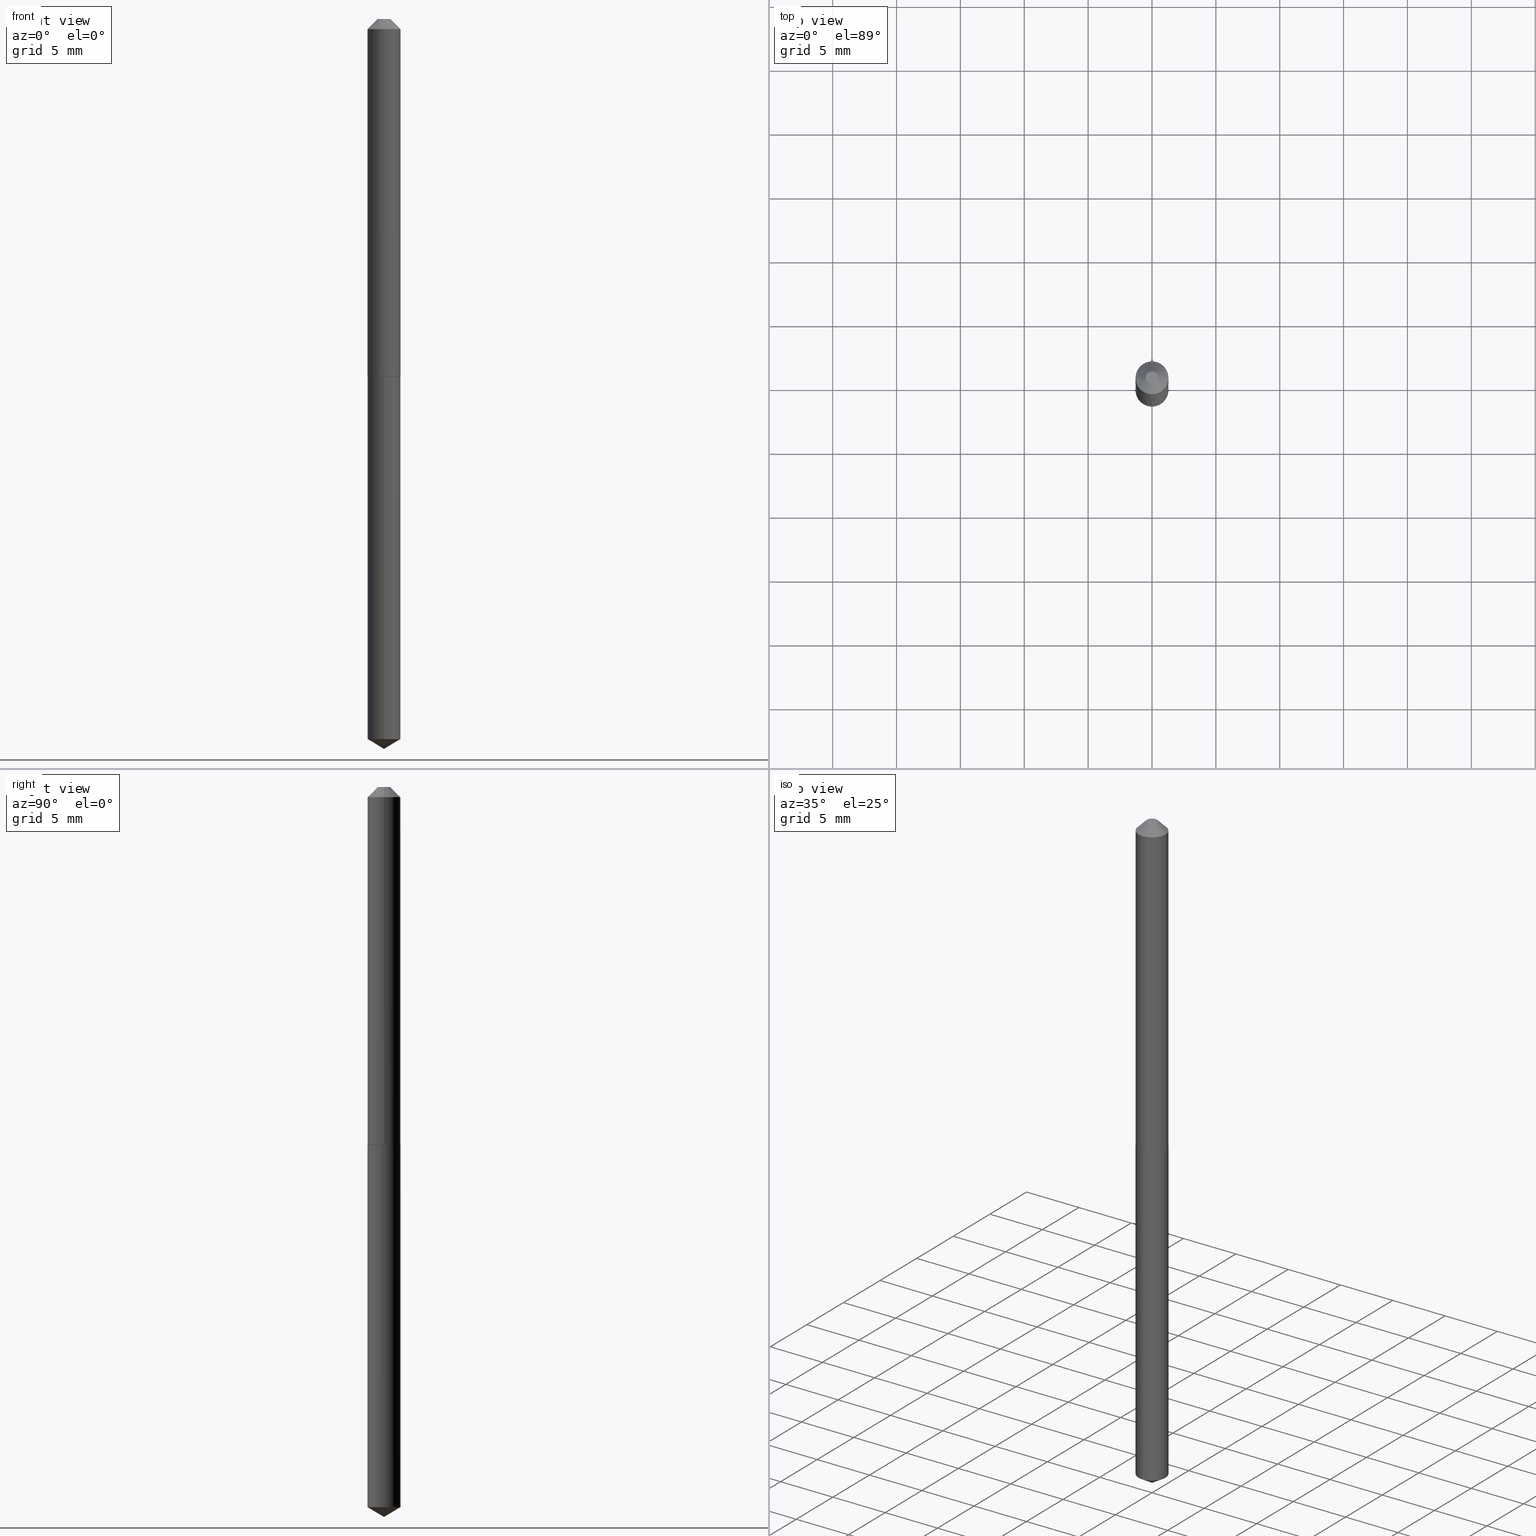
[diagram: canonical four-view strip — front | top / right | iso, engineering-drawing reading convention]
A machine part, canonical four-view strip (front | top / right | iso — engineering-drawing reading convention). The complete STEP part file that produces these views, byte-faithful:
ISO-10303-21;
HEADER;
FILE_DESCRIPTION (( 'STEP AP203' ),
    '1' );
FILE_NAME ('51038.STEP',
    '2024-04-22T18:16:48',
    ( '' ),
    ( '' ),
    'SwSTEP 2.0',
    'SolidWorks 2023',
    '' );
FILE_SCHEMA (( 'CONFIG_CONTROL_DESIGN' ));
ENDSEC;

DATA;
#1 = DIRECTION ( 'NONE',  ( 1.000000000000000000, -6.982962677686267499E-15, 4.876158468089368575E-29 ) ) ;
#2 = ORIENTED_EDGE ( 'NONE', *, *, #294, .T. ) ;
#3 = APPLICATION_CONTEXT ( 'configuration controlled 3d designs of mechanical parts and assemblies' ) ;
#4 = DIRECTION ( 'NONE',  ( -2.445468806185136597E-29, 3.491481338843145583E-15, 1.000000000000000000 ) ) ;
#5 = DIRECTION ( 'NONE',  ( -1.000000000000000000, 6.982962677686265133E-15, 0.000000000000000000 ) ) ;
#6 = EDGE_CURVE ( 'NONE', #131, #77, #123, .T. ) ;
#7 = AXIS2_PLACEMENT_3D ( 'NONE', #17, #244, #126 ) ;
#8 = CARTESIAN_POINT ( 'NONE',  ( 2.693683890012927652E-29, -3.845866694735724612E-15, -1.101499999999999924 ) ) ;
#9 = EDGE_LOOP ( 'NONE', ( #377, #41, #301, #298 ) ) ;
#10 = EDGE_LOOP ( 'NONE', ( #128, #28, #274, #70 ) ) ;
#11 = CARTESIAN_POINT ( 'NONE',  ( -0.05075000000000001732, 2.452765640537290907E-16, -0.03125000000000021511 ) ) ;
#12 = PERSON_AND_ORGANIZATION_ROLE ( 'creator' ) ;
#13 = CONICAL_SURFACE ( 'NONE', #110, 65.52281426576827528, 1.029744258676653423 ) ;
#14 = VECTOR ( 'NONE', #243, 39.37007874015748143 ) ;
#15 = ORIENTED_EDGE ( 'NONE', *, *, #335, .F. ) ;
#16 = APPROVAL_DATE_TIME ( #199, #161 ) ;
#17 = CARTESIAN_POINT ( 'NONE',  ( 2.693683890012927652E-29, -3.845866694735724612E-15, -1.101499999999999924 ) ) ;
#18 = DATE_AND_TIME ( #287, #312 ) ;
#19 = DIRECTION ( 'NONE',  ( 1.000000000000000000, -6.982962677686265922E-15, 4.876176775795935793E-29 ) ) ;
#20 = ADVANCED_FACE ( 'NONE', ( #341 ), #344, .F. ) ;
#21 = APPROVAL_PERSON_ORGANIZATION ( #340, #42, #379 ) ;
#22 = CARTESIAN_POINT ( 'NONE',  ( 0.05025000000000016953, -4.196760569289461029E-15, -1.101499999999999924 ) ) ;
#23 = MECHANICAL_CONTEXT ( 'NONE', #321, 'mechanical' ) ;
#24 = PRODUCT_DEFINITION_SHAPE ( 'NONE', 'NONE',  #175 ) ;
#25 = DIRECTION ( 'NONE',  ( 0.7071067811865052732, -2.468850131081814115E-15, 0.7071067811865897612 ) ) ;
#26 = ADVANCED_FACE ( 'NONE', ( #247 ), #219, .F. ) ;
#27 = DIRECTION ( 'NONE',  ( -6.982962677686265133E-15, -1.000000000000000000, 3.468864327941602497E-15 ) ) ;
#28 = ORIENTED_EDGE ( 'NONE', *, *, #235, .T. ) ;
#29 = DIRECTION ( 'NONE',  ( -2.445468806185136597E-29, 3.491481338843145583E-15, 1.000000000000000000 ) ) ;
#30 = ORIENTED_EDGE ( 'NONE', *, *, #183, .F. ) ;
#31 = LOCAL_TIME ( 14, 16, 48.00000000000000000, #74 ) ;
#32 = DIRECTION ( 'NONE',  ( -2.445399240766827348E-29, 3.491580960481582281E-15, 1.000000000000000000 ) ) ;
#33 = VERTEX_POINT ( 'NONE', #99 ) ;
#34 = DIRECTION ( 'NONE',  ( -2.445399240766827348E-29, 3.491580960481582281E-15, 1.000000000000000000 ) ) ;
#35 = EDGE_CURVE ( 'NONE', #153, #33, #279, .T. ) ;
#36 = DIRECTION ( 'NONE',  ( 1.000000000000000000, -6.982962677686270655E-15, 0.000000000000000000 ) ) ;
#37 = VERTEX_POINT ( 'NONE', #193 ) ;
#38 = AXIS2_PLACEMENT_3D ( 'NONE', #208, #263, #382 ) ;
#39 = SECURITY_CLASSIFICATION ( '', '', #134 ) ;
#40 = DIRECTION ( 'NONE',  ( -2.445399240766827348E-29, 3.491580960481582281E-15, 1.000000000000000000 ) ) ;
#41 = ORIENTED_EDGE ( 'NONE', *, *, #69, .T. ) ;
#42 = APPROVAL ( #348, 'UNSPECIFIED' ) ;
#43 = ORIENTED_EDGE ( 'NONE', *, *, #311, .F. ) ;
#44 =( NAMED_UNIT ( * ) SI_UNIT ( $, .STERADIAN. ) SOLID_ANGLE_UNIT ( ) );
#45 = CYLINDRICAL_SURFACE ( 'NONE', #233, 0.05075000000000008671 ) ;
#46 = APPROVAL_STATUS ( 'not_yet_approved' ) ;
#47 = AXIS2_PLACEMENT_3D ( 'NONE', #120, #178, #303 ) ;
#48 = ORIENTED_EDGE ( 'NONE', *, *, #271, .T. ) ;
#49 = DATE_AND_TIME ( #160, #329 ) ;
#50 = CARTESIAN_POINT ( 'NONE',  ( 0.000000000000000000, 0.000000000000000000, 0.000000000000000000 ) ) ;
#51 = APPROVAL_DATE_TIME ( #49, #42 ) ;
#52 = CARTESIAN_POINT ( 'NONE',  ( 0.05075000000000014222, -4.198506309958881744E-15, -1.100999999999999979 ) ) ;
#53 = CARTESIAN_POINT ( 'NONE',  ( 0.000000000000000000, 0.000000000000000000, 0.000000000000000000 ) ) ;
#54 = CONICAL_SURFACE ( 'NONE', #38, 65.52281426576827528, 1.029744258676653423 ) ;
#55 = CC_DESIGN_PERSON_AND_ORGANIZATION_ASSIGNMENT ( #130, #202, ( #71 ) ) ;
#56 = DIRECTION ( 'NONE',  ( -2.445468806185136597E-29, 3.491481338843145583E-15, 1.000000000000000000 ) ) ;
#57 = AXIS2_PLACEMENT_3D ( 'NONE', #334, #302, #95 ) ;
#58 = APPROVAL_PERSON_ORGANIZATION ( #194, #161, #310 ) ;
#59 = CARTESIAN_POINT ( 'NONE',  ( -0.05075000000000014222, -3.483520515668050958E-15, -1.100999999999999979 ) ) ;
#60 = DIRECTION ( 'NONE',  ( -2.445468806185136597E-29, 3.491481338843145583E-15, 1.000000000000000000 ) ) ;
#61 = EDGE_LOOP ( 'NONE', ( #100, #113, #146, #286 ) ) ;
#62 = DIRECTION ( 'NONE',  ( 6.090539988449775280E-15, 0.8571673007021136659, 0.5150380749100520461 ) ) ;
#63 = CIRCLE ( 'NONE', #324, 0.05075000000000001732 ) ;
#64 = CIRCLE ( 'NONE', #292, 0.05025000000000016953 ) ;
#65 = ADVANCED_FACE ( 'NONE', ( #309 ), #45, .T. ) ;
#66 = DIRECTION ( 'NONE',  ( -0.7071067811865052732, 7.493145998870201121E-15, 0.7071067811865897612 ) ) ;
#67 = CARTESIAN_POINT ( 'NONE',  ( -0.05075000000000014222, -3.483520515668050958E-15, -1.100999999999999979 ) ) ;
#68 = DIRECTION ( 'NONE',  ( 1.000000000000000000, -6.982962677686265133E-15, 0.000000000000000000 ) ) ;
#69 = EDGE_CURVE ( 'NONE', #37, #237, #255, .T. ) ;
#70 = ORIENTED_EDGE ( 'NONE', *, *, #170, .F. ) ;
#71 = PRODUCT_DEFINITION_FORMATION_WITH_SPECIFIED_SOURCE ( 'ANY', '', #384, .NOT_KNOWN. ) ;
#72 = FACE_OUTER_BOUND ( 'NONE', #9, .T. ) ;
#73 = VERTEX_POINT ( 'NONE', #59 ) ;
#74 = COORDINATED_UNIVERSAL_TIME_OFFSET ( 5, 0, .BEHIND. ) ;
#75 = DIRECTION ( 'NONE',  ( -0.7071067811865452413, 2.468850131082233000E-15, -0.7071067811865497932 ) ) ;
#76 = DATE_AND_TIME ( #228, #31 ) ;
#77 = VERTEX_POINT ( 'NONE', #314 ) ;
#78 = CIRCLE ( 'NONE', #338, 0.05075000000000001732 ) ;
#79 = CALENDAR_DATE ( 2024, 22, 4 ) ;
#80 = EDGE_CURVE ( 'NONE', #33, #77, #78, .T. ) ;
#81 = ORIENTED_EDGE ( 'NONE', *, *, #323, .T. ) ;
#82 = APPROVAL_DATE_TIME ( #76, #260 ) ;
#83 = CC_DESIGN_PERSON_AND_ORGANIZATION_ASSIGNMENT ( #101, #318, ( #39 ) ) ;
#84 = DIRECTION ( 'NONE',  ( -2.445468806185136877E-29, 3.491481338843145188E-15, 1.000000000000000000 ) ) ;
#85 = AXIS2_PLACEMENT_3D ( 'NONE', #206, #108, #93 ) ;
#86 = CONICAL_SURFACE ( 'NONE', #90, 0.05075000000000014222, 0.7853981633973885490 ) ;
#87 = CARTESIAN_POINT ( 'NONE',  ( -0.01950000000000000691, 1.907221681343056497E-16, -1.530808498945601662E-19 ) ) ;
#88 = CARTESIAN_POINT ( 'NONE',  ( -9.077333574207768801E-28, 1.296078699139457587E-13, 37.12007874015748143 ) ) ;
#89 = CIRCLE ( 'NONE', #171, 0.05075000000000000344 ) ;
#90 = AXIS2_PLACEMENT_3D ( 'NONE', #122, #4, #98 ) ;
#91 = VERTEX_POINT ( 'NONE', #173 ) ;
#92 = DIRECTION ( 'NONE',  ( 1.000000000000000000, -6.982962677686265922E-15, 4.876176775795935793E-29 ) ) ;
#93 = DIRECTION ( 'NONE',  ( 1.000000000000000000, -6.982962677686270655E-15, 0.000000000000000000 ) ) ;
#94 = ORIENTED_EDGE ( 'NONE', *, *, #210, .F. ) ;
#95 = DIRECTION ( 'NONE',  ( -1.000000000000000000, 6.982962677686265133E-15, 0.000000000000000000 ) ) ;
#96 = CARTESIAN_POINT ( 'NONE',  ( 1.871772216193307361E-48, -2.672394653685577730E-34, -7.654042494670869578E-20 ) ) ;
#97 = ORIENTED_EDGE ( 'NONE', *, *, #366, .F. ) ;
#98 = DIRECTION ( 'NONE',  ( 1.000000000000000000, -6.982962677686270655E-15, 0.000000000000000000 ) ) ;
#99 = CARTESIAN_POINT ( 'NONE',  ( -0.05075000000000001732, -1.616014434554323559E-15, -0.03125000000000021511 ) ) ;
#100 = ORIENTED_EDGE ( 'NONE', *, *, #69, .F. ) ;
#101 = PERSON_AND_ORGANIZATION ( #169, #111 ) ;
#102 = ORIENTED_EDGE ( 'NONE', *, *, #383, .F. ) ;
#103 = EDGE_CURVE ( 'NONE', #196, #131, #141, .T. ) ;
#104 = ORIENTED_EDGE ( 'NONE', *, *, #275, .F. ) ;
#105 = UNCERTAINTY_MEASURE_WITH_UNIT (LENGTH_MEASURE( 1.000000000000000082E-05 ), #119, 'distance_accuracy_value', 'NONE');
#106 = AXIS2_PLACEMENT_3D ( 'NONE', #336, #157, #186 ) ;
#107 = DATE_AND_TIME ( #315, #390 ) ;
#108 = DIRECTION ( 'NONE',  ( -2.445468806185136597E-29, 3.491481338843145583E-15, 1.000000000000000000 ) ) ;
#109 = CARTESIAN_POINT ( 'NONE',  ( 0.01950000000000000691, -2.955293880911495878E-16, -1.530808498919086903E-19 ) ) ;
#110 = AXIS2_PLACEMENT_3D ( 'NONE', #88, #325, #27 ) ;
#111 = ORGANIZATION ( 'UNSPECIFIED', 'UNSPECIFIED', '' ) ;
#112 = DIRECTION ( 'NONE',  ( -2.445468806185136597E-29, 3.491481338843145583E-15, 1.000000000000000000 ) ) ;
#113 = ORIENTED_EDGE ( 'NONE', *, *, #136, .T. ) ;
#114 = CC_DESIGN_DATE_AND_TIME_ASSIGNMENT ( #18, #343, ( #39 ) ) ;
#115 = CARTESIAN_POINT ( 'NONE',  ( -3.543853558925511236E-16, -0.05075000000000384759, -1.101499999999999924 ) ) ;
#116 = AXIS2_PLACEMENT_3D ( 'NONE', #371, #367, #5 ) ;
#117 = FACE_OUTER_BOUND ( 'NONE', #249, .T. ) ;
#118 = ORIENTED_EDGE ( 'NONE', *, *, #35, .T. ) ;
#119 =( CONVERSION_BASED_UNIT ( 'INCH', #300 ) LENGTH_UNIT ( ) NAMED_UNIT ( #195 ) );
#120 = CARTESIAN_POINT ( 'NONE',  ( 3.743544432386614721E-48, -5.344789307371155460E-34, -1.530808498934173916E-19 ) ) ;
#121 = VECTOR ( 'NONE', #25, 39.37007874015748143 ) ;
#122 = CARTESIAN_POINT ( 'NONE',  ( 2.692461155609835411E-29, -3.844120954066303109E-15, -1.100999999999999979 ) ) ;
#123 = LINE ( 'NONE', #375, #305 ) ;
#124 = ADVANCED_FACE ( 'NONE', ( #359 ), #361, .T. ) ;
#125 = DIRECTION ( 'NONE',  ( -2.445468806185136597E-29, 3.491481338843145583E-15, 1.000000000000000000 ) ) ;
#126 = DIRECTION ( 'NONE',  ( 1.000000000000000000, -6.982962677686265922E-15, 4.876176775795935793E-29 ) ) ;
#127 = LINE ( 'NONE', #147, #187 ) ;
#128 = ORIENTED_EDGE ( 'NONE', *, *, #387, .F. ) ;
#129 = AXIS2_PLACEMENT_3D ( 'NONE', #218, #40, #241 ) ;
#130 = PERSON_AND_ORGANIZATION ( #169, #111 ) ;
#131 = VERTEX_POINT ( 'NONE', #52 ) ;
#132 = SHAPE_DEFINITION_REPRESENTATION ( #24, #190 ) ;
#133 = ORIENTED_EDGE ( 'NONE', *, *, #80, .T. ) ;
#134 = SECURITY_CLASSIFICATION_LEVEL ( 'unclassified' ) ;
#135 = CARTESIAN_POINT ( 'NONE',  ( 3.606004383982777887E-16, 0.05074999999999616623, -1.101500000000000146 ) ) ;
#136 = EDGE_CURVE ( 'NONE', #37, #198, #380, .T. ) ;
#137 = CIRCLE ( 'NONE', #261, 0.05025000000000016953 ) ;
#138 = CC_DESIGN_APPROVAL ( #161, ( #39 ) ) ;
#139 = DIRECTION ( 'NONE',  ( 1.000000000000000000, -6.982962677686265133E-15, 0.000000000000000000 ) ) ;
#140 = AXIS2_PLACEMENT_3D ( 'NONE', #50, #240, #19 ) ;
#141 = LINE ( 'NONE', #288, #121 ) ;
#142 = CARTESIAN_POINT ( 'NONE',  ( 5.427655704878611935E-29, -7.749476287860856663E-15, -2.219506323584351293 ) ) ;
#143 = ORIENTED_EDGE ( 'NONE', *, *, #294, .F. ) ;
#144 = CARTESIAN_POINT ( 'NONE',  ( 3.743544432386614721E-48, -5.344789307371155460E-34, -1.530808498934173916E-19 ) ) ;
#145 = DIRECTION ( 'NONE',  ( -2.445468806185136597E-29, 3.491481338843145583E-15, 1.000000000000000000 ) ) ;
#146 = ORIENTED_EDGE ( 'NONE', *, *, #216, .T. ) ;
#147 = CARTESIAN_POINT ( 'NONE',  ( 0.05075000000000001732, -4.572790652257543188E-16, -0.03125000000000021511 ) ) ;
#148 = MANIFOLD_SOLID_BREP ( 'Body-Move/Copy2[2]', #266 ) ;
#149 = CARTESIAN_POINT ( 'NONE',  ( -3.543853558925511236E-16, -0.05075000000000384759, -1.101499999999999924 ) ) ;
#150 = AXIS2_PLACEMENT_3D ( 'NONE', #297, #29, #355 ) ;
#151 = DIRECTION ( 'NONE',  ( -2.445468806185136877E-29, 3.491481338843145188E-15, 1.000000000000000000 ) ) ;
#152 = LINE ( 'NONE', #67, #234 ) ;
#153 = VERTEX_POINT ( 'NONE', #87 ) ;
#154 = CARTESIAN_POINT ( 'NONE',  ( 2.693683890012927652E-29, -3.845866694735724612E-15, -1.101499999999999924 ) ) ;
#155 = ORIENTED_EDGE ( 'NONE', *, *, #35, .F. ) ;
#156 = APPLICATION_PROTOCOL_DEFINITION ( 'international standard', 'config_control_design', 1994, #3 ) ;
#157 = DIRECTION ( 'NONE',  ( 2.445399240766827068E-29, -3.491580960481582281E-15, -1.000000000000000000 ) ) ;
#158 = CLOSED_SHELL ( 'NONE', ( #317, #200, #254, #354, #26 ) ) ;
#159 = APPROVAL_PERSON_ORGANIZATION ( #259, #260, #351 ) ;
#160 = CALENDAR_DATE ( 2024, 22, 4 ) ;
#161 = APPROVAL ( #345, 'UNSPECIFIED' ) ;
#162 = ORIENTED_EDGE ( 'NONE', *, *, #6, .F. ) ;
#163 = MANIFOLD_SOLID_BREP ( 'Body-Move/Copy2[1]', #158 ) ;
#164 = DIRECTION ( 'NONE',  ( -2.445399240766827348E-29, 3.491580960481582281E-15, 1.000000000000000000 ) ) ;
#165 = PERSON_AND_ORGANIZATION ( #169, #111 ) ;
#166 = DIRECTION ( 'NONE',  ( 1.000000000000000000, -6.982962677686265133E-15, 0.000000000000000000 ) ) ;
#167 = DIRECTION ( 'NONE',  ( 1.000000000000000000, 0.000000000000000000, 0.000000000000000000 ) ) ;
#168 = CC_DESIGN_SECURITY_CLASSIFICATION ( #39, ( #71 ) ) ;
#169 = PERSON ( 'UNSPECIFIED', 'UNSPECIFIED', 'UNSPECIFIED', ('UNSPECIFIED'), ('UNSPECIFIED'), ('UNSPECIFIED') ) ;
#170 = EDGE_CURVE ( 'NONE', #73, #131, #204, .T. ) ;
#171 = AXIS2_PLACEMENT_3D ( 'NONE', #142, #388, #239 ) ;
#172 = DIRECTION ( 'NONE',  ( 1.000000000000000000, -6.982962677686265133E-15, 0.000000000000000000 ) ) ;
#173 = CARTESIAN_POINT ( 'NONE',  ( 5.502148291725361463E-29, -7.856057161083561019E-15, -2.250000000000000000 ) ) ;
#174 = EDGE_LOOP ( 'NONE', ( #307, #339, #223 ) ) ;
#175 = PRODUCT_DEFINITION ( 'UNKNOWN', '', #71, #203 ) ;
#176 = LINE ( 'NONE', #115, #299 ) ;
#177 = EDGE_LOOP ( 'NONE', ( #2, #189, #43, #389 ) ) ;
#178 = DIRECTION ( 'NONE',  ( -2.445468806185136597E-29, 3.491481338843145583E-15, 1.000000000000000000 ) ) ;
#179 = AXIS2_PLACEMENT_3D ( 'NONE', #217, #273, #333 ) ;
#180 = EDGE_LOOP ( 'NONE', ( #15, #97, #118, #133 ) ) ;
#181 = CARTESIAN_POINT ( 'NONE',  ( 2.692461155609835411E-29, -3.844120954066303109E-15, -1.100999999999999979 ) ) ;
#182 =( LENGTH_UNIT ( ) NAMED_UNIT ( * ) SI_UNIT ( $, .METRE. ) );
#183 = EDGE_CURVE ( 'NONE', #73, #33, #230, .T. ) ;
#184 = DIRECTION ( 'NONE',  ( 2.438088387897960049E-29, -3.491481338843145188E-15, -1.000000000000000000 ) ) ;
#185 = PRODUCT_RELATED_PRODUCT_CATEGORY ( 'detail', '', ( #384 ) ) ;
#186 = DIRECTION ( 'NONE',  ( 6.982962677686265922E-15, 1.000000000000000000, -3.491580960481582281E-15 ) ) ;
#187 = VECTOR ( 'NONE', #276, 39.37007874015748143 ) ;
#188 = FACE_OUTER_BOUND ( 'NONE', #177, .T. ) ;
#189 = ORIENTED_EDGE ( 'NONE', *, *, #387, .T. ) ;
#190 = ADVANCED_BREP_SHAPE_REPRESENTATION ( '51038', ( #163, #148, #364 ), #209 ) ;
#191 = CC_DESIGN_PERSON_AND_ORGANIZATION_ASSIGNMENT ( #192, #12, ( #71 ) ) ;
#192 = PERSON_AND_ORGANIZATION ( #169, #111 ) ;
#193 = CARTESIAN_POINT ( 'NONE',  ( 3.606004383983051030E-16, 0.05074999999999225270, -2.219506323584351737 ) ) ;
#194 = PERSON_AND_ORGANIZATION ( #169, #111 ) ;
#195 = DIMENSIONAL_EXPONENTS ( 1.000000000000000000, 0.000000000000000000, 0.000000000000000000, 0.000000000000000000, 0.000000000000000000, 0.000000000000000000, 0.000000000000000000 ) ;
#196 = VERTEX_POINT ( 'NONE', #22 ) ;
#197 = COORDINATED_UNIVERSAL_TIME_OFFSET ( 5, 0, .BEHIND. ) ;
#198 = VERTEX_POINT ( 'NONE', #201 ) ;
#199 = DATE_AND_TIME ( #79, #306 ) ;
#200 = ADVANCED_FACE ( 'NONE', ( #316 ), #54, .T. ) ;
#201 = CARTESIAN_POINT ( 'NONE',  ( -3.543853558925237600E-16, -0.05075000000000774725, -2.219506323584350849 ) ) ;
#202 = PERSON_AND_ORGANIZATION_ROLE ( 'design_supplier' ) ;
#203 = DESIGN_CONTEXT ( 'detailed design', #3, 'design' ) ;
#204 = CIRCLE ( 'NONE', #85, 0.05075000000000014222 ) ;
#205 = AXIS2_PLACEMENT_3D ( 'NONE', #304, #34, #270 ) ;
#206 = CARTESIAN_POINT ( 'NONE',  ( 2.692461155609835411E-29, -3.844120954066303109E-15, -1.100999999999999979 ) ) ;
#207 = AXIS2_PLACEMENT_3D ( 'NONE', #144, #267, #1 ) ;
#208 = CARTESIAN_POINT ( 'NONE',  ( -9.077333574207768801E-28, 1.296078699139457587E-13, 37.12007874015748143 ) ) ;
#209 =( GEOMETRIC_REPRESENTATION_CONTEXT ( 3 ) GLOBAL_UNCERTAINTY_ASSIGNED_CONTEXT ( ( #105 ) ) GLOBAL_UNIT_ASSIGNED_CONTEXT ( ( #119, #213, #44 ) ) REPRESENTATION_CONTEXT ( 'NONE', 'WORKASPACE' ) );
#210 = EDGE_CURVE ( 'NONE', #77, #33, #63, .T. ) ;
#211 = DIRECTION ( 'NONE',  ( -2.445399240766827348E-29, 3.491580960481582281E-15, 1.000000000000000000 ) ) ;
#212 = FACE_OUTER_BOUND ( 'NONE', #61, .T. ) ;
#213 =( NAMED_UNIT ( * ) PLANE_ANGLE_UNIT ( ) SI_UNIT ( $, .RADIAN. ) );
#214 = CIRCLE ( 'NONE', #179, 0.05075000000000000344 ) ;
#215 = ORIENTED_EDGE ( 'NONE', *, *, #80, .F. ) ;
#216 = EDGE_CURVE ( 'NONE', #198, #347, #176, .T. ) ;
#217 = CARTESIAN_POINT ( 'NONE',  ( 2.693683890012927652E-29, -3.845866694735724612E-15, -1.101499999999999924 ) ) ;
#218 = CARTESIAN_POINT ( 'NONE',  ( 2.693683890012927652E-29, -3.845866694735724612E-15, -1.101499999999999924 ) ) ;
#219 = PLANE ( 'NONE',  #106 ) ;
#220 = CYLINDRICAL_SURFACE ( 'NONE', #256, 0.05075000000000000344 ) ;
#221 = CC_DESIGN_DATE_AND_TIME_ASSIGNMENT ( #107, #252, ( #175 ) ) ;
#222 = ORIENTED_EDGE ( 'NONE', *, *, #366, .T. ) ;
#223 = ORIENTED_EDGE ( 'NONE', *, *, #136, .F. ) ;
#224 = COORDINATED_UNIVERSAL_TIME_OFFSET ( 5, 0, .BEHIND. ) ;
#225 = VERTEX_POINT ( 'NONE', #109 ) ;
#226 = ORIENTED_EDGE ( 'NONE', *, *, #271, .F. ) ;
#227 = VECTOR ( 'NONE', #84, 39.37007874015748143 ) ;
#228 = CALENDAR_DATE ( 2024, 22, 4 ) ;
#229 = ADVANCED_FACE ( 'NONE', ( #232 ), #352, .T. ) ;
#230 = LINE ( 'NONE', #350, #227 ) ;
#231 = COORDINATED_UNIVERSAL_TIME_OFFSET ( 5, 0, .BEHIND. ) ;
#232 = FACE_OUTER_BOUND ( 'NONE', #10, .T. ) ;
#233 = AXIS2_PLACEMENT_3D ( 'NONE', #289, #112, #92 ) ;
#234 = VECTOR ( 'NONE', #66, 39.37007874015748143 ) ;
#235 = EDGE_CURVE ( 'NONE', #251, #196, #64, .T. ) ;
#236 = FACE_OUTER_BOUND ( 'NONE', #174, .T. ) ;
#237 = VERTEX_POINT ( 'NONE', #293 ) ;
#238 = CONICAL_SURFACE ( 'NONE', #57, 0.05075000000000001732, 0.7853981633974450594 ) ;
#239 = DIRECTION ( 'NONE',  ( -6.982962677686266711E-15, -1.000000000000000000, 5.382951711653720002E-15 ) ) ;
#240 = DIRECTION ( 'NONE',  ( -2.445468806185136597E-29, 3.491481338843145583E-15, 1.000000000000000000 ) ) ;
#241 = DIRECTION ( 'NONE',  ( -6.982962677686266711E-15, -1.000000000000000000, 2.691475855826860001E-15 ) ) ;
#242 = CYLINDRICAL_SURFACE ( 'NONE', #129, 0.05075000000000000344 ) ;
#243 = DIRECTION ( 'NONE',  ( -5.985567269335939702E-15, -0.8571673007021100021, 0.5150380749100580413 ) ) ;
#244 = DIRECTION ( 'NONE',  ( -2.438088387897960049E-29, 3.491481338843145188E-15, 1.000000000000000000 ) ) ;
#245 = FACE_OUTER_BOUND ( 'NONE', #180, .T. ) ;
#246 = CC_DESIGN_PERSON_AND_ORGANIZATION_ASSIGNMENT ( #165, #257, ( #384 ) ) ;
#247 = FACE_OUTER_BOUND ( 'NONE', #253, .T. ) ;
#248 = PLANE ( 'NONE',  #373 ) ;
#249 = EDGE_LOOP ( 'NONE', ( #226, #378, #370, #155 ) ) ;
#250 = PERSON_AND_ORGANIZATION ( #169, #111 ) ;
#251 = VERTEX_POINT ( 'NONE', #385 ) ;
#252 = DATE_TIME_ROLE ( 'creation_date' ) ;
#253 = EDGE_LOOP ( 'NONE', ( #81, #362 ) ) ;
#254 = ADVANCED_FACE ( 'NONE', ( #236 ), #13, .T. ) ;
#255 = LINE ( 'NONE', #135, #372 ) ;
#256 = AXIS2_PLACEMENT_3D ( 'NONE', #8, #32, #369 ) ;
#257 = PERSON_AND_ORGANIZATION_ROLE ( 'design_owner' ) ;
#258 = CARTESIAN_POINT ( 'NONE',  ( 7.642090019328603538E-31, -1.091087918388490390E-16, -0.03125000000000021511 ) ) ;
#259 = PERSON_AND_ORGANIZATION ( #169, #111 ) ;
#260 = APPROVAL ( #46, 'UNSPECIFIED' ) ;
#261 = AXIS2_PLACEMENT_3D ( 'NONE', #154, #125, #68 ) ;
#262 = CIRCLE ( 'NONE', #47, 0.01950000000000000691 ) ;
#263 = DIRECTION ( 'NONE',  ( -2.445399240766827348E-29, 3.491580960481582281E-15, 1.000000000000000000 ) ) ;
#264 = CARTESIAN_POINT ( 'NONE',  ( 7.642090019328603538E-31, -1.091087918388490390E-16, -0.03125000000000021511 ) ) ;
#265 = ORIENTED_EDGE ( 'NONE', *, *, #6, .T. ) ;
#266 = CLOSED_SHELL ( 'NONE', ( #285, #65, #327, #20, #229, #124, #349, #342 ) ) ;
#267 = DIRECTION ( 'NONE',  ( -2.445468806185136597E-29, 3.491481338843145583E-15, 1.000000000000000000 ) ) ;
#268 = CC_DESIGN_APPROVAL ( #260, ( #71 ) ) ;
#269 = EDGE_LOOP ( 'NONE', ( #143, #313 ) ) ;
#270 = DIRECTION ( 'NONE',  ( -6.982962677686266711E-15, -1.000000000000000000, 2.691475855826860001E-15 ) ) ;
#271 = EDGE_CURVE ( 'NONE', #225, #153, #346, .T. ) ;
#272 = DIRECTION ( 'NONE',  ( -1.000000000000000000, 6.982962677686265922E-15, -4.876176775795935793E-29 ) ) ;
#273 = DIRECTION ( 'NONE',  ( -2.445399240766827348E-29, 3.491580960481582281E-15, 1.000000000000000000 ) ) ;
#274 = ORIENTED_EDGE ( 'NONE', *, *, #103, .T. ) ;
#275 = EDGE_CURVE ( 'NONE', #198, #37, #89, .T. ) ;
#276 = DIRECTION ( 'NONE',  ( 0.7071067811865452413, -7.319954787623248157E-15, -0.7071067811865497932 ) ) ;
#277 = EDGE_LOOP ( 'NONE', ( #222, #48 ) ) ;
#278 = FACE_OUTER_BOUND ( 'NONE', #277, .T. ) ;
#279 = LINE ( 'NONE', #11, #281 ) ;
#280 = PERSON_AND_ORGANIZATION_ROLE ( 'creator' ) ;
#281 = VECTOR ( 'NONE', #75, 39.37007874015748143 ) ;
#282 = ORIENTED_EDGE ( 'NONE', *, *, #183, .T. ) ;
#283 = CC_DESIGN_APPROVAL ( #42, ( #175 ) ) ;
#284 = COORDINATED_UNIVERSAL_TIME_OFFSET ( 5, 0, .BEHIND. ) ;
#285 = ADVANCED_FACE ( 'NONE', ( #117 ), #238, .T. ) ;
#286 = ORIENTED_EDGE ( 'NONE', *, *, #374, .F. ) ;
#287 = CALENDAR_DATE ( 2024, 22, 4 ) ;
#288 = CARTESIAN_POINT ( 'NONE',  ( 0.05075000000000014222, -4.198506309958881744E-15, -1.100999999999999979 ) ) ;
#289 = CARTESIAN_POINT ( 'NONE',  ( 0.000000000000000000, 0.000000000000000000, 0.000000000000000000 ) ) ;
#290 = CC_DESIGN_PERSON_AND_ORGANIZATION_ASSIGNMENT ( #250, #280, ( #175 ) ) ;
#291 = APPLICATION_PROTOCOL_DEFINITION ( 'international standard', 'config_control_design', 1994, #321 ) ;
#292 = AXIS2_PLACEMENT_3D ( 'NONE', #322, #56, #172 ) ;
#293 = CARTESIAN_POINT ( 'NONE',  ( 3.606004383983053002E-16, 0.05074999999999615929, -1.101500000000000146 ) ) ;
#294 = EDGE_CURVE ( 'NONE', #196, #251, #137, .T. ) ;
#295 = DIRECTION ( 'NONE',  ( -2.445399240766827348E-29, 3.491580960481582281E-15, 1.000000000000000000 ) ) ;
#296 = ORIENTED_EDGE ( 'NONE', *, *, #170, .T. ) ;
#297 = CARTESIAN_POINT ( 'NONE',  ( 2.692461155609835411E-29, -3.844120954066303109E-15, -1.100999999999999979 ) ) ;
#298 = ORIENTED_EDGE ( 'NONE', *, *, #216, .F. ) ;
#299 = VECTOR ( 'NONE', #295, 39.37007874015748143 ) ;
#300 = LENGTH_MEASURE_WITH_UNIT ( LENGTH_MEASURE( 0.02539999999999999897 ), #182 );
#301 = ORIENTED_EDGE ( 'NONE', *, *, #323, .F. ) ;
#302 = DIRECTION ( 'NONE',  ( 2.445468806185136597E-29, -3.491481338843145583E-15, -1.000000000000000000 ) ) ;
#303 = DIRECTION ( 'NONE',  ( 1.000000000000000000, -6.982962677686267499E-15, 4.876158468089368575E-29 ) ) ;
#304 = CARTESIAN_POINT ( 'NONE',  ( 2.693683890012927652E-29, -3.845866694735724612E-15, -1.101499999999999924 ) ) ;
#305 = VECTOR ( 'NONE', #151, 39.37007874015748143 ) ;
#306 = LOCAL_TIME ( 14, 16, 48.00000000000000000, #284 ) ;
#307 = ORIENTED_EDGE ( 'NONE', *, *, #360, .F. ) ;
#308 = EDGE_LOOP ( 'NONE', ( #102, #357, #104 ) ) ;
#309 = FACE_OUTER_BOUND ( 'NONE', #332, .T. ) ;
#310 = APPROVAL_ROLE ( '' ) ;
#311 = EDGE_CURVE ( 'NONE', #131, #73, #319, .T. ) ;
#312 = LOCAL_TIME ( 14, 16, 48.00000000000000000, #224 ) ;
#313 = ORIENTED_EDGE ( 'NONE', *, *, #235, .F. ) ;
#314 = CARTESIAN_POINT ( 'NONE',  ( 0.05075000000000001732, -4.634941477314271441E-16, -0.03125000000000021511 ) ) ;
#315 = CALENDAR_DATE ( 2024, 22, 4 ) ;
#316 = FACE_OUTER_BOUND ( 'NONE', #308, .T. ) ;
#317 = ADVANCED_FACE ( 'NONE', ( #72 ), #220, .T. ) ;
#318 = PERSON_AND_ORGANIZATION_ROLE ( 'classification_officer' ) ;
#319 = CIRCLE ( 'NONE', #358, 0.05075000000000014222 ) ;
#320 = VECTOR ( 'NONE', #62, 39.37007874015748143 ) ;
#321 = APPLICATION_CONTEXT ( 'configuration controlled 3d designs of mechanical parts and assemblies' ) ;
#322 = CARTESIAN_POINT ( 'NONE',  ( 2.693683890012927652E-29, -3.845866694735724612E-15, -1.101499999999999924 ) ) ;
#323 = EDGE_CURVE ( 'NONE', #347, #237, #353, .T. ) ;
#324 = AXIS2_PLACEMENT_3D ( 'NONE', #258, #356, #166 ) ;
#325 = DIRECTION ( 'NONE',  ( -2.445399240766827348E-29, 3.491580960481582281E-15, 1.000000000000000000 ) ) ;
#326 = DIRECTION ( 'NONE',  ( -6.982962677686266711E-15, -1.000000000000000000, 5.382951711653720002E-15 ) ) ;
#327 = ADVANCED_FACE ( 'NONE', ( #188 ), #86, .T. ) ;
#328 = CARTESIAN_POINT ( 'NONE',  ( 5.502302888186444170E-29, -7.855837694614084405E-15, -2.250000000000000000 ) ) ;
#329 = LOCAL_TIME ( 14, 16, 48.00000000000000000, #197 ) ;
#330 = LINE ( 'NONE', #337, #14 ) ;
#331 = CONICAL_SURFACE ( 'NONE', #116, 0.05075000000000001732, 0.7853981633974450594 ) ;
#332 = EDGE_LOOP ( 'NONE', ( #386, #282, #94, #162 ) ) ;
#333 = DIRECTION ( 'NONE',  ( -6.982962677686266711E-15, -1.000000000000000000, 2.691475855826860001E-15 ) ) ;
#334 = CARTESIAN_POINT ( 'NONE',  ( 7.642090019328603538E-31, -1.091087918388490390E-16, -0.03125000000000021511 ) ) ;
#335 = EDGE_CURVE ( 'NONE', #225, #77, #127, .T. ) ;
#336 = CARTESIAN_POINT ( 'NONE',  ( 2.693683890012927652E-29, -3.845866694735724612E-15, -1.101499999999999924 ) ) ;
#337 = CARTESIAN_POINT ( 'NONE',  ( 5.502148291725361463E-29, -7.856057161083561019E-15, -2.250000000000000000 ) ) ;
#338 = AXIS2_PLACEMENT_3D ( 'NONE', #264, #60, #139 ) ;
#339 = ORIENTED_EDGE ( 'NONE', *, *, #383, .T. ) ;
#340 = PERSON_AND_ORGANIZATION ( #169, #111 ) ;
#341 = FACE_OUTER_BOUND ( 'NONE', #269, .T. ) ;
#342 = ADVANCED_FACE ( 'NONE', ( #278 ), #248, .F. ) ;
#343 = DATE_TIME_ROLE ( 'classification_date' ) ;
#344 = PLANE ( 'NONE',  #7 ) ;
#345 = APPROVAL_STATUS ( 'not_yet_approved' ) ;
#346 = CIRCLE ( 'NONE', #207, 0.01950000000000000691 ) ;
#347 = VERTEX_POINT ( 'NONE', #149 ) ;
#348 = APPROVAL_STATUS ( 'not_yet_approved' ) ;
#349 = ADVANCED_FACE ( 'NONE', ( #245 ), #331, .T. ) ;
#350 = CARTESIAN_POINT ( 'NONE',  ( -0.05075000000000008671, 3.606004383982514604E-16, -2.496359558304368800E-30 ) ) ;
#351 = APPROVAL_ROLE ( '' ) ;
#352 = CONICAL_SURFACE ( 'NONE', #150, 0.05075000000000014222, 0.7853981633973885490 ) ;
#353 = CIRCLE ( 'NONE', #205, 0.05075000000000000344 ) ;
#354 = ADVANCED_FACE ( 'NONE', ( #212 ), #242, .T. ) ;
#355 = DIRECTION ( 'NONE',  ( 1.000000000000000000, -6.982962677686270655E-15, 0.000000000000000000 ) ) ;
#356 = DIRECTION ( 'NONE',  ( -2.445468806185136597E-29, 3.491481338843145583E-15, 1.000000000000000000 ) ) ;
#357 = ORIENTED_EDGE ( 'NONE', *, *, #360, .T. ) ;
#358 = AXIS2_PLACEMENT_3D ( 'NONE', #181, #145, #36 ) ;
#359 = FACE_OUTER_BOUND ( 'NONE', #368, .T. ) ;
#360 = EDGE_CURVE ( 'NONE', #91, #37, #365, .T. ) ;
#361 = CYLINDRICAL_SURFACE ( 'NONE', #140, 0.05075000000000008671 ) ;
#362 = ORIENTED_EDGE ( 'NONE', *, *, #374, .T. ) ;
#363 = AXIS2_PLACEMENT_3D ( 'NONE', #381, #211, #326 ) ;
#364 = AXIS2_PLACEMENT_3D ( 'NONE', #53, #376, #167 ) ;
#365 = LINE ( 'NONE', #328, #320 ) ;
#366 = EDGE_CURVE ( 'NONE', #153, #225, #262, .T. ) ;
#367 = DIRECTION ( 'NONE',  ( 2.445468806185136597E-29, -3.491481338843145583E-15, -1.000000000000000000 ) ) ;
#368 = EDGE_LOOP ( 'NONE', ( #30, #296, #265, #215 ) ) ;
#369 = DIRECTION ( 'NONE',  ( -6.982962677686266711E-15, -1.000000000000000000, 2.691475855826860001E-15 ) ) ;
#370 = ORIENTED_EDGE ( 'NONE', *, *, #210, .T. ) ;
#371 = CARTESIAN_POINT ( 'NONE',  ( 7.642090019328603538E-31, -1.091087918388490390E-16, -0.03125000000000021511 ) ) ;
#372 = VECTOR ( 'NONE', #164, 39.37007874015748143 ) ;
#373 = AXIS2_PLACEMENT_3D ( 'NONE', #96, #184, #272 ) ;
#374 = EDGE_CURVE ( 'NONE', #237, #347, #214, .T. ) ;
#375 = CARTESIAN_POINT ( 'NONE',  ( 0.05075000000000008671, -3.543853558925785858E-16, 2.474659713716441605E-30 ) ) ;
#376 = DIRECTION ( 'NONE',  ( 0.000000000000000000, 0.000000000000000000, 1.000000000000000000 ) ) ;
#377 = ORIENTED_EDGE ( 'NONE', *, *, #275, .T. ) ;
#378 = ORIENTED_EDGE ( 'NONE', *, *, #335, .T. ) ;
#379 = APPROVAL_ROLE ( '' ) ;
#380 = CIRCLE ( 'NONE', #363, 0.05075000000000000344 ) ;
#381 = CARTESIAN_POINT ( 'NONE',  ( 5.427655704878611935E-29, -7.749476287860856663E-15, -2.219506323584351293 ) ) ;
#382 = DIRECTION ( 'NONE',  ( -6.982962677686265133E-15, -1.000000000000000000, 3.468864327941602497E-15 ) ) ;
#383 = EDGE_CURVE ( 'NONE', #91, #198, #330, .T. ) ;
#384 = PRODUCT ( '51038', '51038', '', ( #23 ) ) ;
#385 = CARTESIAN_POINT ( 'NONE',  ( -0.05025000000000016953, -3.486169742842162159E-15, -1.101499999999999924 ) ) ;
#386 = ORIENTED_EDGE ( 'NONE', *, *, #311, .T. ) ;
#387 = EDGE_CURVE ( 'NONE', #251, #73, #152, .T. ) ;
#388 = DIRECTION ( 'NONE',  ( -2.445399240766827348E-29, 3.491580960481582281E-15, 1.000000000000000000 ) ) ;
#389 = ORIENTED_EDGE ( 'NONE', *, *, #103, .F. ) ;
#390 = LOCAL_TIME ( 14, 16, 48.00000000000000000, #231 ) ;
ENDSEC;
END-ISO-10303-21;
